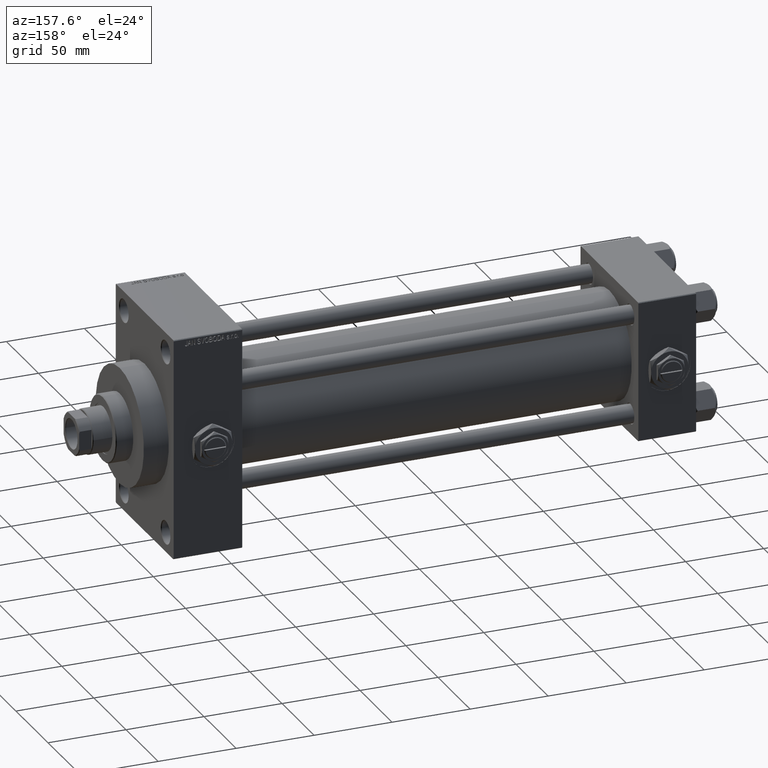
[diagram: clean part render]
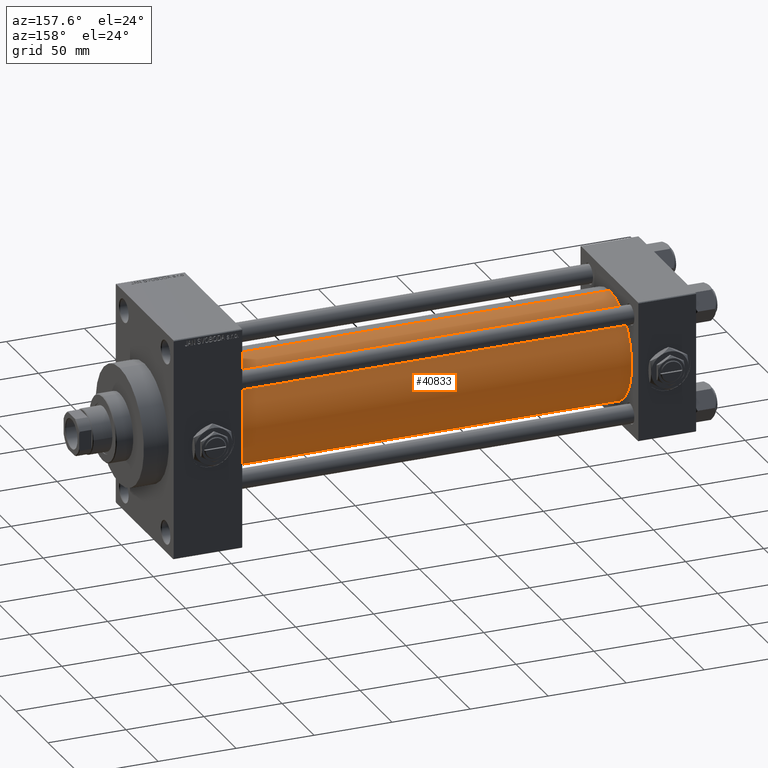
[diagram: same view with one face highlighted and labeled with its STEP entity id]
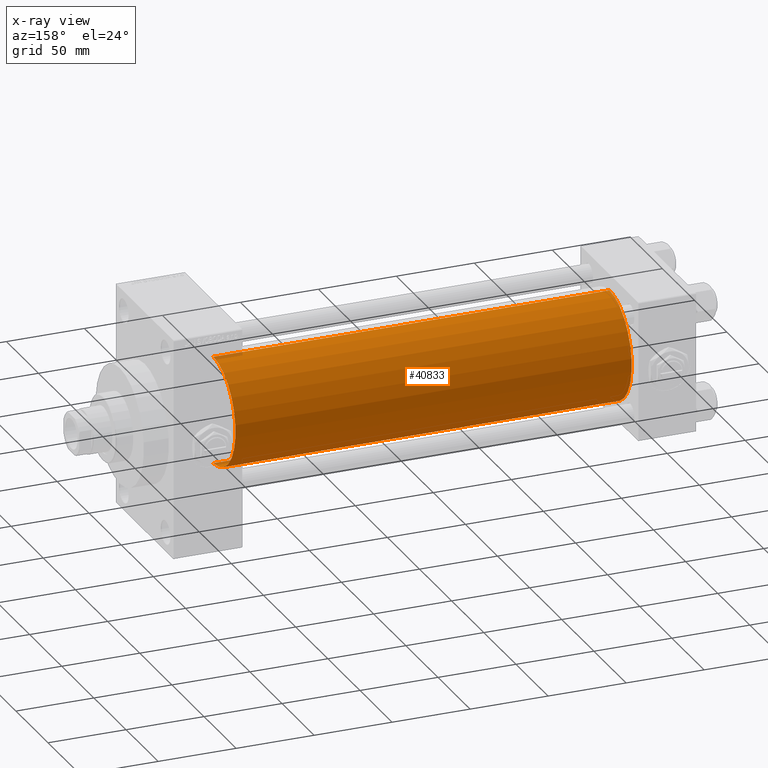
[diagram: x-ray of the same camera — body ghosted, the highlighted face saturated]
A machine part, auxiliary view. The second image highlights one B-rep face of the part: STEP entity #40833.
The next image is the same camera in x-ray: the body ghosted, the highlighted face saturated — about 0% of this face is hidden behind the body in this view.
In plain terms, the highlighted cylindrical surface (partial cylindrical patch) has radius 34.5 mm, axis along (-1, -0, -0).
Its self-contained STEP definition (entity closure, byte-faithful):
#440 = EDGE_CURVE ( 'NONE', #37101, #19200, #25244, .T. ) ;
#1083 = DIRECTION ( 'NONE',  ( 1.000000000000000000, -0.000000000000000000, 0.000000000000000000 ) ) ;
#3848 = DIRECTION ( 'NONE',  ( -1.000000000000000000, -0.000000000000000000, -0.000000000000000000 ) ) ;
#4070 = AXIS2_PLACEMENT_3D ( 'NONE', #36153, #12750, #16977 ) ;
#7029 = ORIENTED_EDGE ( 'NONE', *, *, #440, .T. ) ;
#7075 = EDGE_LOOP ( 'NONE', ( #7097, #13993, #7029, #21704 ) ) ;
#7097 = ORIENTED_EDGE ( 'NONE', *, *, #12991, .F. ) ;
#8759 = VERTEX_POINT ( 'NONE', #28923 ) ;
#9007 = CARTESIAN_POINT ( 'NONE',  ( 36.99999999999997868, -2.602085213965210642E-15, 34.50000000000000000 ) ) ;
#11050 = CARTESIAN_POINT ( 'NONE',  ( 291.0000000000000000, 1.622946243093158675E-15, -34.50000000000000000 ) ) ;
#11487 = VECTOR ( 'NONE', #41677, 1000.000000000000000 ) ;
#12750 = DIRECTION ( 'NONE',  ( 1.000000000000000000, 0.000000000000000000, 0.000000000000000000 ) ) ;
#12991 = EDGE_CURVE ( 'NONE', #24131, #8759, #35086, .T. ) ;
#13022 = CARTESIAN_POINT ( 'NONE',  ( 36.99999999999997868, -2.602085213965210642E-15, 0.000000000000000000 ) ) ;
#13993 = ORIENTED_EDGE ( 'NONE', *, *, #46900, .T. ) ;
#16977 = DIRECTION ( 'NONE',  ( 0.000000000000000000, 0.000000000000000000, -1.000000000000000000 ) ) ;
#16983 = EDGE_CURVE ( 'NONE', #8759, #19200, #45444, .T. ) ;
#19200 = VERTEX_POINT ( 'NONE', #9007 ) ;
#20049 = AXIS2_PLACEMENT_3D ( 'NONE', #40336, #24673, #21415 ) ;
#21415 = DIRECTION ( 'NONE',  ( 0.000000000000000000, 0.000000000000000000, 1.000000000000000000 ) ) ;
#21704 = ORIENTED_EDGE ( 'NONE', *, *, #16983, .F. ) ;
#23805 = CARTESIAN_POINT ( 'NONE',  ( 291.0000000000000000, 1.622946243093158675E-15, -34.50000000000000000 ) ) ;
#24131 = VERTEX_POINT ( 'NONE', #23805 ) ;
#24546 = CARTESIAN_POINT ( 'NONE',  ( 36.99999999999997868, 1.622946243093158675E-15, -34.50000000000000000 ) ) ;
#24673 = DIRECTION ( 'NONE',  ( -1.000000000000000000, -0.000000000000000000, -0.000000000000000000 ) ) ;
#25244 = CIRCLE ( 'NONE', #30778, 34.50000000000000000 ) ;
#26524 = CARTESIAN_POINT ( 'NONE',  ( 291.0000000000000000, -2.602085213965210642E-15, 34.50000000000000000 ) ) ;
#28923 = CARTESIAN_POINT ( 'NONE',  ( 291.0000000000000000, -2.602085213965210642E-15, 34.50000000000000000 ) ) ;
#30778 = AXIS2_PLACEMENT_3D ( 'NONE', #13022, #1083, #35704 ) ;
#35086 = CIRCLE ( 'NONE', #4070, 34.50000000000000000 ) ;
#35704 = DIRECTION ( 'NONE',  ( 0.000000000000000000, 0.000000000000000000, 1.000000000000000000 ) ) ;
#36153 = CARTESIAN_POINT ( 'NONE',  ( 291.0000000000000000, -2.602085213965210642E-15, 0.000000000000000000 ) ) ;
#37101 = VERTEX_POINT ( 'NONE', #24546 ) ;
#40336 = CARTESIAN_POINT ( 'NONE',  ( 291.0000000000000000, -2.602085213965210642E-15, 0.000000000000000000 ) ) ;
#40833 = ADVANCED_FACE ( 'NONE', ( #47078 ), #47316, .T. ) ;
#41677 = DIRECTION ( 'NONE',  ( -1.000000000000000000, -0.000000000000000000, -0.000000000000000000 ) ) ;
#44903 = VECTOR ( 'NONE', #3848, 1000.000000000000000 ) ;
#45165 = LINE ( 'NONE', #11050, #11487 ) ;
#45444 = LINE ( 'NONE', #26524, #44903 ) ;
#46900 = EDGE_CURVE ( 'NONE', #24131, #37101, #45165, .T. ) ;
#47078 = FACE_OUTER_BOUND ( 'NONE', #7075, .T. ) ;
#47316 = CYLINDRICAL_SURFACE ( 'NONE', #20049, 34.50000000000000000 ) ;